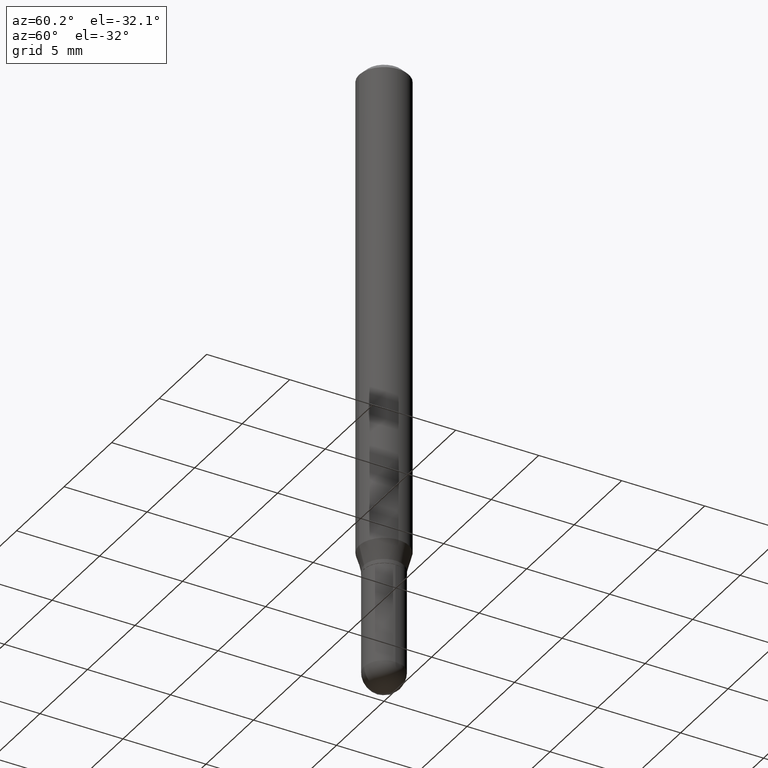
[diagram: clean part render]
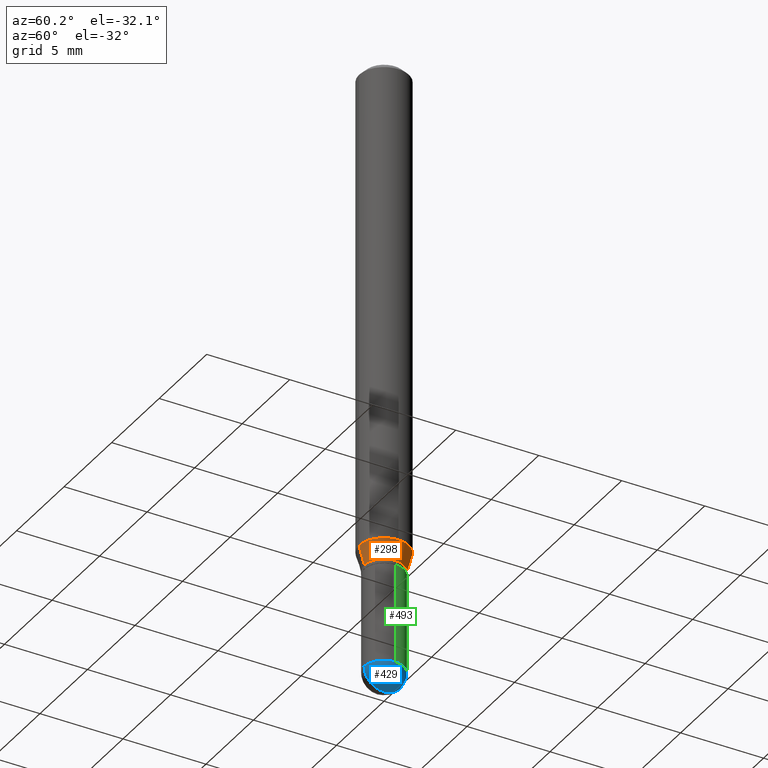
[diagram: same view with three faces highlighted in distinct colors, each labeled with its STEP entity id]
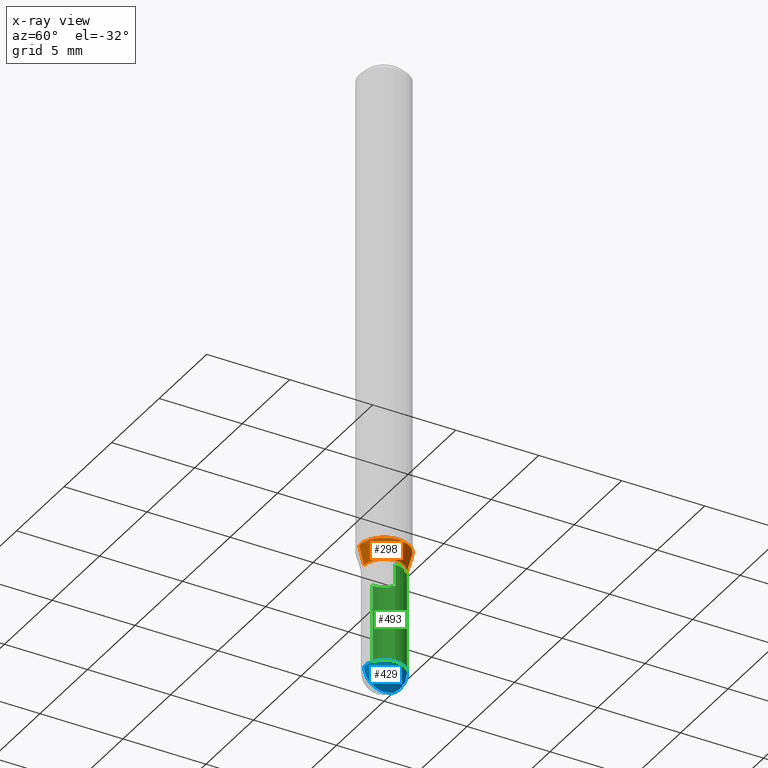
[diagram: x-ray of the same camera — body ghosted, the three highlighted faces saturated]
A machine part, auxiliary view with three faces highlighted in distinct colors.
The next image is the same camera in x-ray (body ghosted, the three faces saturated) — at least one of them is partly hidden behind the body in this view.
Their STEP definitions:

[orange] entity #298 — the highlighted conical surface has half-angle 15 deg.
#11 = DIRECTION ( 'NONE',  ( 1.839019923739601499E-15, 0.2588190451025251249, 0.9659258262890670910 ) ) ;
#74 = ORIENTED_EDGE ( 'NONE', *, *, #205, .T. ) ;
#78 = CARTESIAN_POINT ( 'NONE',  ( -3.299449865206470168E-16, -0.04725000000000425388, -1.202599999999999669 ) ) ;
#92 = DIRECTION ( 'NONE',  ( -6.982962677686265922E-15, -1.000000000000000000, 2.890844437739957528E-15 ) ) ;
#95 = FACE_OUTER_BOUND ( 'NONE', #207, .T. ) ;
#98 = DIRECTION ( 'NONE',  ( -2.445408174341908367E-29, 3.491568167093598573E-15, 1.000000000000000000 ) ) ;
#109 = VECTOR ( 'NONE', #11, 39.37007874015748854 ) ;
#120 = AXIS2_PLACEMENT_3D ( 'NONE', #402, #98, #288 ) ;
#128 = CARTESIAN_POINT ( 'NONE',  ( 2.940847870463578782E-29, -4.198959877746760740E-15, -1.202599999999999891 ) ) ;
#173 = VECTOR ( 'NONE', #247, 39.37007874015748854 ) ;
#192 = VERTEX_POINT ( 'NONE', #339 ) ;
#195 = CIRCLE ( 'NONE', #200, 0.05904999999999999832 ) ;
#200 = AXIS2_PLACEMENT_3D ( 'NONE', #216, #254, #251 ) ;
#205 = EDGE_CURVE ( 'NONE', #477, #308, #372, .T. ) ;
#207 = EDGE_LOOP ( 'NONE', ( #421, #74, #503, #462 ) ) ;
#208 = AXIS2_PLACEMENT_3D ( 'NONE', #128, #294, #92 ) ;
#216 = CARTESIAN_POINT ( 'NONE',  ( 2.833156497351298695E-29, -4.045197502134097515E-15, -1.158561800470687464 ) ) ;
#220 = CARTESIAN_POINT ( 'NONE',  ( 3.357314426466771197E-16, 0.04724999999999585781, -1.202600000000000113 ) ) ;
#237 = CIRCLE ( 'NONE', #208, 0.04725000000000005584 ) ;
#247 = DIRECTION ( 'NONE',  ( -1.807323732225331323E-15, -0.2588190451025183525, 0.9659258262890689783 ) ) ;
#248 = VERTEX_POINT ( 'NONE', #78 ) ;
#251 = DIRECTION ( 'NONE',  ( -6.982962677686265922E-15, -1.000000000000000000, 4.626330217890369336E-15 ) ) ;
#254 = DIRECTION ( 'NONE',  ( -2.445408174341908367E-29, 3.491568167093598573E-15, 1.000000000000000000 ) ) ;
#257 = CARTESIAN_POINT ( 'NONE',  ( -3.299449865206470168E-16, -0.04725000000000425388, -1.202599999999999669 ) ) ;
#288 = DIRECTION ( 'NONE',  ( -6.982962677686265922E-15, -1.000000000000000000, 2.890844437739957528E-15 ) ) ;
#294 = DIRECTION ( 'NONE',  ( -2.445408174341908367E-29, 3.491568167093598573E-15, 1.000000000000000000 ) ) ;
#297 = LINE ( 'NONE', #257, #173 ) ;
#298 = ADVANCED_FACE ( 'NONE', ( #95 ), #423, .T. ) ;
#308 = VERTEX_POINT ( 'NONE', #478 ) ;
#339 = CARTESIAN_POINT ( 'NONE',  ( -4.123439461173456337E-16, -0.05905000000000405758, -1.158561800470687464 ) ) ;
#350 = EDGE_CURVE ( 'NONE', #192, #308, #195, .T. ) ;
#351 = CARTESIAN_POINT ( 'NONE',  ( 3.776534640565222593E-16, 0.04724999999999585781, -1.202600000000000113 ) ) ;
#372 = LINE ( 'NONE', #220, #109 ) ;
#376 = EDGE_CURVE ( 'NONE', #248, #192, #297, .T. ) ;
#402 = CARTESIAN_POINT ( 'NONE',  ( 2.940847870463578782E-29, -4.198959877746760740E-15, -1.202599999999999891 ) ) ;
#414 = EDGE_CURVE ( 'NONE', #248, #477, #237, .T. ) ;
#421 = ORIENTED_EDGE ( 'NONE', *, *, #414, .T. ) ;
#423 = CONICAL_SURFACE ( 'NONE', #120, 0.04725000000000005584, 0.2617993877991504625 ) ;
#462 = ORIENTED_EDGE ( 'NONE', *, *, #376, .F. ) ;
#477 = VERTEX_POINT ( 'NONE', #351 ) ;
#478 = CARTESIAN_POINT ( 'NONE',  ( 4.195754854663673496E-16, 0.05904999999999594601, -1.158561800470687686 ) ) ;
#503 = ORIENTED_EDGE ( 'NONE', *, *, #350, .F. ) ;

[blue] entity #429 — the highlighted spherical surface has radius 1.2001 mm.
#5 = ORIENTED_EDGE ( 'NONE', *, *, #501, .F. ) ;
#14 = CARTESIAN_POINT ( 'NONE',  ( 3.357314426466819515E-16, 0.04724999999999483086, -1.448850000000000415 ) ) ;
#19 = SPHERICAL_SURFACE ( 'NONE', #243, 0.04724999999999979911 ) ;
#21 = CARTESIAN_POINT ( 'NONE',  ( -3.299449865206399170E-16, -0.04725000000000495470, -1.448849999999999749 ) ) ;
#28 = AXIS2_PLACEMENT_3D ( 'NONE', #51, #441, #374 ) ;
#31 = DIRECTION ( 'NONE',  ( -2.445468806185136597E-29, 3.491481338843145583E-15, 1.000000000000000000 ) ) ;
#33 = DIRECTION ( 'NONE',  ( 1.000000000000000000, -6.982962677686267499E-15, 0.000000000000000000 ) ) ;
#51 = CARTESIAN_POINT ( 'NONE',  ( 3.539076819124962473E-29, -5.064419193908863088E-15, -1.448849999999999971 ) ) ;
#69 = CIRCLE ( 'NONE', #458, 0.04724999999999998646 ) ;
#70 = CARTESIAN_POINT ( 'NONE',  ( 3.543117479841335070E-29, -5.058632737782891656E-15, -1.448849999999999971 ) ) ;
#81 = AXIS2_PLACEMENT_3D ( 'NONE', #94, #328, #337 ) ;
#82 = CIRCLE ( 'NONE', #507, 0.04724999999999998646 ) ;
#87 = EDGE_CURVE ( 'NONE', #474, #104, #456, .T. ) ;
#94 = CARTESIAN_POINT ( 'NONE',  ( 3.539076819124962473E-29, -5.064419193908863088E-15, -1.448849999999999971 ) ) ;
#104 = VERTEX_POINT ( 'NONE', #21 ) ;
#124 = ORIENTED_EDGE ( 'NONE', *, *, #510, .F. ) ;
#140 = CARTESIAN_POINT ( 'NONE',  ( 0.04724999999999998646, -4.976146491152720682E-15, -1.448849999999999971 ) ) ;
#154 = CIRCLE ( 'NONE', #28, 0.04724999999999979911 ) ;
#165 = VERTEX_POINT ( 'NONE', #140 ) ;
#176 = CARTESIAN_POINT ( 'NONE',  ( 3.539076819124962473E-29, -5.064419193908863088E-15, -1.448849999999999971 ) ) ;
#234 = ORIENTED_EDGE ( 'NONE', *, *, #87, .F. ) ;
#243 = AXIS2_PLACEMENT_3D ( 'NONE', #176, #338, #382 ) ;
#261 = DIRECTION ( 'NONE',  ( 1.000000000000000000, -6.982962677686267499E-15, 0.000000000000000000 ) ) ;
#272 = DIRECTION ( 'NONE',  ( -2.445468806185136597E-29, 3.491481338843145583E-15, 1.000000000000000000 ) ) ;
#273 = EDGE_LOOP ( 'NONE', ( #234, #286, #5, #124 ) ) ;
#286 = ORIENTED_EDGE ( 'NONE', *, *, #310, .T. ) ;
#307 = CARTESIAN_POINT ( 'NONE',  ( 3.652604889859023213E-29, -5.232284915232186807E-15, -1.496099999999999985 ) ) ;
#310 = EDGE_CURVE ( 'NONE', #474, #314, #154, .T. ) ;
#314 = VERTEX_POINT ( 'NONE', #14 ) ;
#328 = DIRECTION ( 'NONE',  ( -1.000000000000000000, 6.982962677686265922E-15, -4.883557194083112340E-29 ) ) ;
#337 = DIRECTION ( 'NONE',  ( -6.982962677686265922E-15, -1.000000000000000000, 0.000000000000000000 ) ) ;
#338 = DIRECTION ( 'NONE',  ( 1.000000000000000000, -6.982962677686265922E-15, 4.883557194083112901E-29 ) ) ;
#374 = DIRECTION ( 'NONE',  ( 7.105427357601001070E-15, 1.000000000000000000, 0.000000000000000000 ) ) ;
#382 = DIRECTION ( 'NONE',  ( -6.982962677686265922E-15, -1.000000000000000000, 5.781688875479946610E-15 ) ) ;
#386 = CARTESIAN_POINT ( 'NONE',  ( 3.543117479841335070E-29, -5.058632737782891656E-15, -1.448849999999999971 ) ) ;
#429 = ADVANCED_FACE ( 'NONE', ( #434 ), #19, .T. ) ;
#434 = FACE_OUTER_BOUND ( 'NONE', #273, .T. ) ;
#441 = DIRECTION ( 'NONE',  ( 1.000000000000000000, -7.105427357601001070E-15, 4.926315508542082329E-29 ) ) ;
#456 = CIRCLE ( 'NONE', #81, 0.04724999999999979911 ) ;
#458 = AXIS2_PLACEMENT_3D ( 'NONE', #70, #31, #261 ) ;
#474 = VERTEX_POINT ( 'NONE', #307 ) ;
#501 = EDGE_CURVE ( 'NONE', #165, #314, #69, .T. ) ;
#507 = AXIS2_PLACEMENT_3D ( 'NONE', #386, #272, #33 ) ;
#510 = EDGE_CURVE ( 'NONE', #104, #165, #82, .T. ) ;

[green] entity #493 — the highlighted cylindrical surface (edge-blend (fillet) strip) has radius 1.2001 mm, axis along (-0, 0, 1).
#10 = LINE ( 'NONE', #432, #486 ) ;
#14 = CARTESIAN_POINT ( 'NONE',  ( 3.357314426466819515E-16, 0.04724999999999483086, -1.448850000000000415 ) ) ;
#23 = DIRECTION ( 'NONE',  ( 1.000000000000000000, -6.982962677686256455E-15, 0.000000000000000000 ) ) ;
#31 = DIRECTION ( 'NONE',  ( -2.445468806185136597E-29, 3.491481338843145583E-15, 1.000000000000000000 ) ) ;
#40 = EDGE_CURVE ( 'NONE', #165, #397, #299, .T. ) ;
#46 = DIRECTION ( 'NONE',  ( -2.445468806185136877E-29, 3.491481338843145188E-15, 1.000000000000000000 ) ) ;
#56 = DIRECTION ( 'NONE',  ( -2.445468806185136597E-29, 3.491481338843145583E-15, 1.000000000000000000 ) ) ;
#60 = AXIS2_PLACEMENT_3D ( 'NONE', #134, #56, #494 ) ;
#69 = CIRCLE ( 'NONE', #458, 0.04724999999999998646 ) ;
#70 = CARTESIAN_POINT ( 'NONE',  ( 3.543117479841335070E-29, -5.058632737782891656E-15, -1.448849999999999971 ) ) ;
#73 = CARTESIAN_POINT ( 'NONE',  ( 0.000000000000000000, 0.000000000000000000, 0.000000000000000000 ) ) ;
#90 = CIRCLE ( 'NONE', #505, 0.04724999999999999339 ) ;
#100 = CIRCLE ( 'NONE', #60, 0.04724999999999998646 ) ;
#105 = CARTESIAN_POINT ( 'NONE',  ( 0.04724999999999998646, -3.299449865206760074E-16, 2.303993526563579130E-30 ) ) ;
#134 = CARTESIAN_POINT ( 'NONE',  ( 3.543117479841335070E-29, -5.058632737782891656E-15, -1.448849999999999971 ) ) ;
#140 = CARTESIAN_POINT ( 'NONE',  ( 0.04724999999999998646, -4.976146491152720682E-15, -1.448849999999999971 ) ) ;
#147 = EDGE_CURVE ( 'NONE', #314, #245, #100, .T. ) ;
#160 = ORIENTED_EDGE ( 'NONE', *, *, #40, .F. ) ;
#165 = VERTEX_POINT ( 'NONE', #140 ) ;
#235 = ORIENTED_EDGE ( 'NONE', *, *, #446, .F. ) ;
#245 = VERTEX_POINT ( 'NONE', #475 ) ;
#261 = DIRECTION ( 'NONE',  ( 1.000000000000000000, -6.982962677686267499E-15, 0.000000000000000000 ) ) ;
#264 = ORIENTED_EDGE ( 'NONE', *, *, #501, .T. ) ;
#290 = CARTESIAN_POINT ( 'NONE',  ( -0.04724999999999999339, -4.310470061985398025E-15, -1.212599999999999900 ) ) ;
#292 = VECTOR ( 'NONE', #440, 39.37007874015748143 ) ;
#299 = LINE ( 'NONE', #105, #292 ) ;
#305 = ORIENTED_EDGE ( 'NONE', *, *, #147, .T. ) ;
#314 = VERTEX_POINT ( 'NONE', #14 ) ;
#355 = FACE_OUTER_BOUND ( 'NONE', #363, .T. ) ;
#356 = ORIENTED_EDGE ( 'NONE', *, *, #358, .T. ) ;
#358 = EDGE_CURVE ( 'NONE', #245, #389, #10, .T. ) ;
#363 = EDGE_LOOP ( 'NONE', ( #305, #356, #235, #160, #264 ) ) ;
#380 = DIRECTION ( 'NONE',  ( -2.445468806185136597E-29, 3.491481338843145583E-15, 1.000000000000000000 ) ) ;
#384 = DIRECTION ( 'NONE',  ( 1.000000000000000000, -6.982962677686266711E-15, 4.876176775795935793E-29 ) ) ;
#389 = VERTEX_POINT ( 'NONE', #290 ) ;
#394 = AXIS2_PLACEMENT_3D ( 'NONE', #73, #506, #384 ) ;
#397 = VERTEX_POINT ( 'NONE', #408 ) ;
#408 = CARTESIAN_POINT ( 'NONE',  ( 0.04724999999999999339, -4.563715258001873701E-15, -1.212599999999999900 ) ) ;
#432 = CARTESIAN_POINT ( 'NONE',  ( -0.04724999999999998646, 3.357314426466472416E-16, -2.324196830145442465E-30 ) ) ;
#440 = DIRECTION ( 'NONE',  ( -2.445468806185136877E-29, 3.491481338843145188E-15, 1.000000000000000000 ) ) ;
#446 = EDGE_CURVE ( 'NONE', #397, #389, #90, .T. ) ;
#458 = AXIS2_PLACEMENT_3D ( 'NONE', #70, #31, #261 ) ;
#475 = CARTESIAN_POINT ( 'NONE',  ( -0.04724999999999998646, -4.310470061985398025E-15, -1.448849999999999971 ) ) ;
#486 = VECTOR ( 'NONE', #46, 39.37007874015748143 ) ;
#491 = CARTESIAN_POINT ( 'NONE',  ( 2.965375474380096235E-29, -4.233770271481197693E-15, -1.212599999999999900 ) ) ;
#493 = ADVANCED_FACE ( 'NONE', ( #355 ), #502, .T. ) ;
#494 = DIRECTION ( 'NONE',  ( 1.000000000000000000, -6.982962677686267499E-15, 0.000000000000000000 ) ) ;
#501 = EDGE_CURVE ( 'NONE', #165, #314, #69, .T. ) ;
#502 = CYLINDRICAL_SURFACE ( 'NONE', #394, 0.04724999999999998646 ) ;
#505 = AXIS2_PLACEMENT_3D ( 'NONE', #491, #380, #23 ) ;
#506 = DIRECTION ( 'NONE',  ( -2.445468806185136597E-29, 3.491481338843145583E-15, 1.000000000000000000 ) ) ;